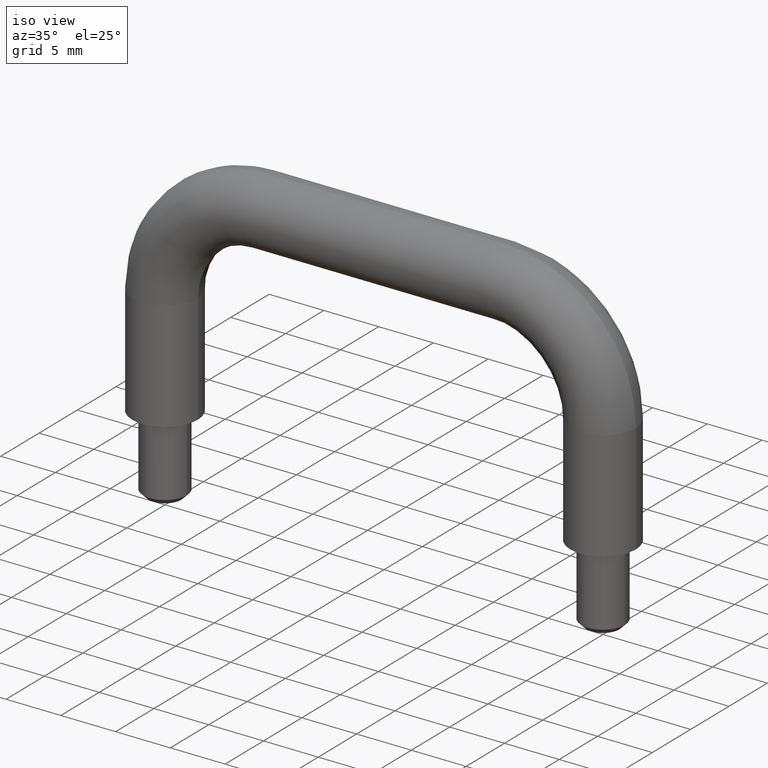
[diagram: clean part render]
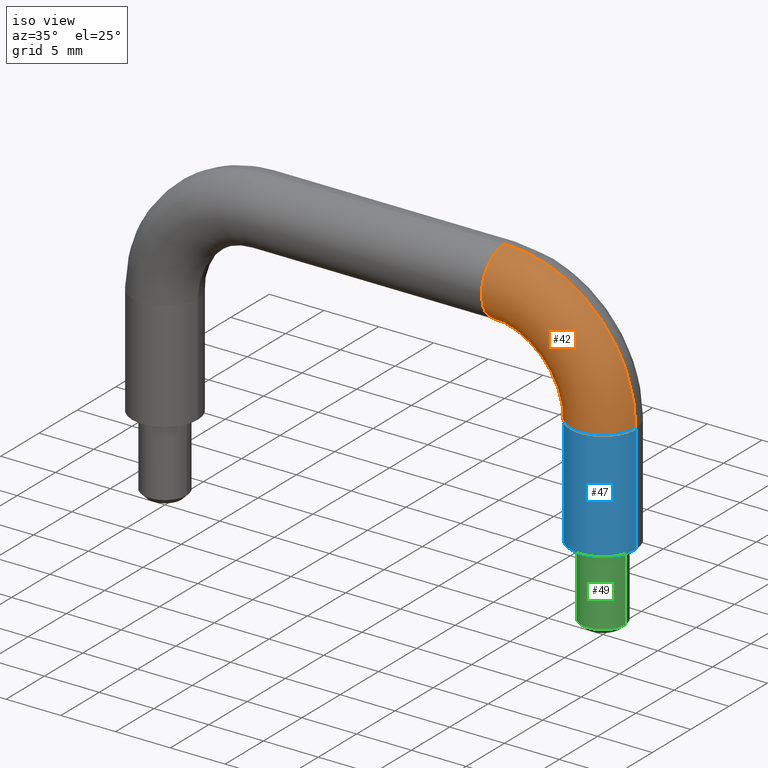
[diagram: same view with three faces highlighted in distinct colors, each labeled with its STEP entity id]
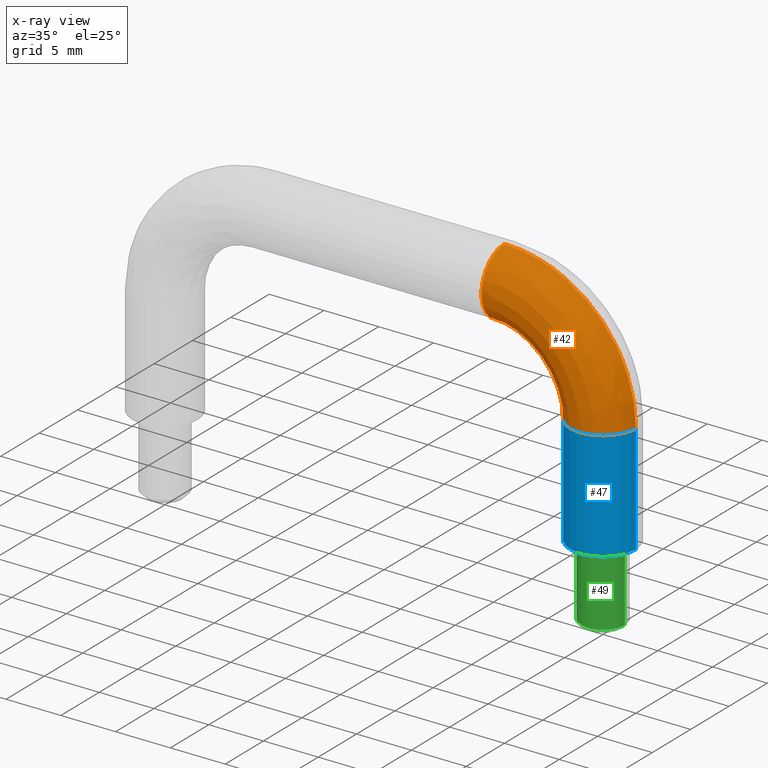
[diagram: x-ray of the same camera — body ghosted, the three highlighted faces saturated]
A machine part, iso view with three faces highlighted in distinct colors.
The next image is the same camera in x-ray (body ghosted, the three faces saturated) — at least one of them is partly hidden behind the body in this view.
Their STEP definitions:

[orange] entity #42 — the highlighted face is a freeform B-spline surface patch.
#42=ADVANCED_FACE('',(#84),#83,.T.);
#83=( BOUNDED_SURFACE() B_SPLINE_SURFACE( 3,3,((#295,#296,#297,#298,#299,#300,#301),(#302,#303,#304,#305,#306,#307,#308),(#309,#310,#311,#312,#313,#314,#315),(#316,#317,#318,#319,#320,#321,#322),(#323,#324,#325,#326,#327,#328,#329),(#330,#331,#332,#333,#334,#335,#336),(#337,#338,#339,#340,#341,#342,#343)), .UNSPECIFIED.,.F.,.F.,.F.) B_SPLINE_SURFACE_WITH_KNOTS((4,1,1,1,4),(4,1,1,1,4),(0.00000000000E+00,2.50000000000E-01,5.00000000000E-01,7.50000000000E-01,1.00000000000E+00),(0.00000000000E+00,2.49559115838E-01,5.00000000000E-01,7.50440884162E-01,1.00000000000E+00), .UNSPECIFIED. ) GEOMETRIC_REPRESENTATION_ITEM() RATIONAL_B_SPLINE_SURFACE(((1.00000000000E+00,1.00000000000E+00,1.00000000000E+00,1.00000000000E+00,1.00000000000E+00,1.00000000000E+00,1.00000000000E+00),(1.00000000000E+00,1.00000000000E+00,1.00000000000E+00,1.00000000000E+00,1.00000000000E+00,1.00000000000E+00,1.00000000000E+00),(1.00000000000E+00,1.00000000000E+00,1.00000000000E+00,1.00000000000E+00,1.00000000000E+00,1.00000000000E+00,1.00000000000E+00),(1.00000000000E+00,1.00000000000E+00,1.00000000000E+00,1.00000000000E+00,1.00000000000E+00,1.00000000000E+00,1.00000000000E+00),(1.00000000000E+00,1.00000000000E+00,1.00000000000E+00,1.00000000000E+00,1.00000000000E+00,1.00000000000E+00,1.00000000000E+00),(1.00000000000E+00,1.00000000000E+00,1.00000000000E+00,1.00000000000E+00,1.00000000000E+00,1.00000000000E+00,1.00000000000E+00),(1.00000000000E+00,1.00000000000E+00,1.00000000000E+00,1.00000000000E+00,1.00000000000E+00,1.00000000000E+00,1.00000000000E+00))) REPRESENTATION_ITEM('') SURFACE() );
#84=FACE_OUTER_BOUND('',#344,.T.);
#295=CARTESIAN_POINT('',(1.69999999999E+01,-3.67381906147E-16,-6.00000000000E+00));
#296=CARTESIAN_POINT('',(1.69999999999E+01,-3.67381906147E-16,-5.21598684610E+00));
#297=CARTESIAN_POINT('',(1.66881902111E+01,-3.67381906147E-16,-3.64564053599E+00));
#298=CARTESIAN_POINT('',(1.53535188052E+01,-3.67381906147E-16,-1.64648119474E+00));
#299=CARTESIAN_POINT('',(1.33543594639E+01,-3.67381906147E-16,-3.11809788756E-01));
#300=CARTESIAN_POINT('',(1.17840131538E+01,-3.67381906147E-16,3.78482820015E-15));
#301=CARTESIAN_POINT('',(1.09999999999E+01,-3.67381906147E-16,3.55271367880E-15));
#302=CARTESIAN_POINT('',(1.69960863756E+01,-7.84902571646E-01,-6.00000000000E+00));
#303=CARTESIAN_POINT('',(1.69960863756E+01,-7.84902571646E-01,-5.20327873106E+00));
#304=CARTESIAN_POINT('',(1.66840071326E+01,-7.84902571647E-01,-3.65333648329E+00));
#305=CARTESIAN_POINT('',(1.53523403333E+01,-7.84902571647E-01,-1.64765966658E+00));
#306=CARTESIAN_POINT('',(1.33466635166E+01,-7.84902571647E-01,-3.15992867272E-01));
#307=CARTESIAN_POINT('',(1.17967212688E+01,-7.84902571646E-01,-3.91362428601E-03));
#308=CARTESIAN_POINT('',(1.09999999999E+01,-7.84902571646E-01,-3.91362428601E-03));
#309=CARTESIAN_POINT('',(1.76486908706E+01,-2.35139231717E+00,-6.00000000000E+00));
#310=CARTESIAN_POINT('',(1.76486908706E+01,-2.35139231717E+00,-5.10117077798E+00));
#311=CARTESIAN_POINT('',(1.73020948003E+01,-2.35139231717E+00,-3.40510297808E+00));
#312=CARTESIAN_POINT('',(1.58279765903E+01,-2.35139231717E+00,-1.17202340958E+00));
#313=CARTESIAN_POINT('',(1.35948970218E+01,-2.35139231717E+00,3.02094800383E-01));
#314=CARTESIAN_POINT('',(1.18988292219E+01,-2.35139231717E+00,6.48690870700E-01));
#315=CARTESIAN_POINT('',(1.09999999999E+01,-2.35139231717E+00,6.48690870700E-01));
#316=CARTESIAN_POINT('',(1.99999999999E+01,-3.32731061924E+00,-6.00000000000E+00));
#317=CARTESIAN_POINT('',(1.99999999999E+01,-3.32731061924E+00,-4.82398026915E+00));
#318=CARTESIAN_POINT('',(1.95322853168E+01,-3.32731061924E+00,-2.46846080399E+00));
#319=CARTESIAN_POINT('',(1.75302782078E+01,-3.32731061924E+00,5.30278207890E-01));
#320=CARTESIAN_POINT('',(1.45315391959E+01,-3.32731061924E+00,2.53228531687E+00));
#321=CARTESIAN_POINT('',(1.21760197307E+01,-3.32731061924E+00,3.00000000000E+00));
#322=CARTESIAN_POINT('',(1.09999999999E+01,-3.32731061924E+00,3.00000000000E+00));
#323=CARTESIAN_POINT('',(2.23513091292E+01,-2.35139231717E+00,-6.00000000000E+00));
#324=CARTESIAN_POINT('',(2.23513091292E+01,-2.35139231717E+00,-4.54678976032E+00));
#325=CARTESIAN_POINT('',(2.17624758332E+01,-2.35139231717E+00,-1.53181862990E+00));
#326=CARTESIAN_POINT('',(1.92325798253E+01,-2.35139231717E+00,2.23257982536E+00));
#327=CARTESIAN_POINT('',(1.54681813700E+01,-2.35139231717E+00,4.76247583335E+00));
#328=CARTESIAN_POINT('',(1.24532102396E+01,-2.35139231717E+00,5.35130912930E+00));
#329=CARTESIAN_POINT('',(1.09999999999E+01,-2.35139231717E+00,5.35130912930E+00));
#330=CARTESIAN_POINT('',(2.30039136242E+01,-7.84902571646E-01,-6.00000000000E+00));
#331=CARTESIAN_POINT('',(2.30039136242E+01,-7.84902571646E-01,-4.44468180724E+00));
#332=CARTESIAN_POINT('',(2.23805635009E+01,-7.84902571646E-01,-1.28358512468E+00));
#333=CARTESIAN_POINT('',(1.97082160823E+01,-7.84902571646E-01,2.70821608236E+00));
#334=CARTESIAN_POINT('',(1.57164148752E+01,-7.84902571646E-01,5.38056350100E+00));
#335=CARTESIAN_POINT('',(1.25553181927E+01,-7.84902571646E-01,6.00391362429E+00));
#336=CARTESIAN_POINT('',(1.09999999999E+01,-7.84902571646E-01,6.00391362429E+00));
#337=CARTESIAN_POINT('',(2.29999999999E+01,0.00000000000E+00,-6.00000000000E+00));
#338=CARTESIAN_POINT('',(2.29999999999E+01,0.00000000000E+00,-4.43197369220E+00));
#339=CARTESIAN_POINT('',(2.23763804224E+01,0.00000000000E+00,-1.29128107198E+00));
#340=CARTESIAN_POINT('',(1.97070376104E+01,0.00000000000E+00,2.70703761052E+00));
#341=CARTESIAN_POINT('',(1.57087189279E+01,0.00000000000E+00,5.37638042249E+00));
#342=CARTESIAN_POINT('',(1.25680263077E+01,0.00000000000E+00,6.00000000000E+00));
#343=CARTESIAN_POINT('',(1.09999999999E+01,0.00000000000E+00,6.00000000000E+00));
#344=EDGE_LOOP('',(#558,#559,#560,#561));
#558=ORIENTED_EDGE('',*,*,#642,.T.);
#559=ORIENTED_EDGE('',*,*,#643,.F.);
#560=ORIENTED_EDGE('',*,*,#644,.T.);
#561=ORIENTED_EDGE('',*,*,#645,.T.);
#642=EDGE_CURVE('',#720,#721,#722,.T.);
#643=EDGE_CURVE('',#728,#721,#729,.T.);
#644=EDGE_CURVE('',#728,#735,#736,.T.);
#645=EDGE_CURVE('',#735,#720,#742,.T.);
#720=VERTEX_POINT('',#984);
#721=VERTEX_POINT('',#985);
#722=CIRCLE('',#989,3.00000000000E+00);
#728=VERTEX_POINT('',#990);
#729=CIRCLE('',#994,6.00000000000E+00);
#735=VERTEX_POINT('',#995);
#736=CIRCLE('',#999,3.00000000000E+00);
#742=(BOUNDED_CURVE() B_SPLINE_CURVE(3,(#1000,#1001,#1002,#1003,#1004),.UNSPECIFIED.,.F.,.F.) B_SPLINE_CURVE_WITH_KNOTS((4,1,4),(1.57079632679E+00,2.35619449020E+00,3.14159265360E+00),.UNSPECIFIED.) CURVE() GEOMETRIC_REPRESENTATION_ITEM() RATIONAL_B_SPLINE_CURVE((1.00000000000E+00,1.00000000000E+00,1.00000000000E+00,1.00000000000E+00,1.00000000000E+00)) REPRESENTATION_ITEM('') );
#984=CARTESIAN_POINT('',(1.09999999999E+01,-1.48029736617E-16,6.00000000000E+00));
#985=CARTESIAN_POINT('',(1.09999999999E+01,0.00000000000E+00,0.00000000000E+00));
#986=CARTESIAN_POINT('',(1.09999999999E+01,0.00000000000E+00,3.00000000000E+00));
#987=DIRECTION('',(1.00000000000E+00,0.00000000000E+00,0.00000000000E+00));
#988=DIRECTION('',(-0.00000000000E+00,4.93432455390E-17,-1.00000000000E+00));
#989=AXIS2_PLACEMENT_3D('',#986,#987,#988);
#990=CARTESIAN_POINT('',(1.69999999999E+01,-1.48029736617E-16,-6.00000000000E+00));
#991=CARTESIAN_POINT('',(1.09999999999E+01,-3.67381906147E-16,-6.00000000000E+00));
#992=DIRECTION('',(1.64346021921E-32,-1.00000000000E+00,-2.70217232571E-48));
#993=DIRECTION('',(-1.00000000000E+00,-1.64346021921E-32,2.64973228544E-13));
#994=AXIS2_PLACEMENT_3D('',#991,#992,#993);
#995=CARTESIAN_POINT('',(2.29999999999E+01,0.00000000000E+00,-6.00000000000E+00));
#996=CARTESIAN_POINT('',(1.99999999999E+01,0.00000000000E+00,-6.00000000000E+00));
#997=DIRECTION('',(0.00000000000E+00,0.00000000000E+00,1.00000000000E+00));
#998=DIRECTION('',(1.00000000000E+00,4.93432455390E-17,-0.00000000000E+00));
#999=AXIS2_PLACEMENT_3D('',#996,#997,#998);
#1000=CARTESIAN_POINT('',(2.29999999999E+01,0.00000000000E+00,-6.00000000003E+00));
#1001=CARTESIAN_POINT('',(2.30250591043E+01,0.00000000000E+00,-2.89325030285E+00));
#1002=CARTESIAN_POINT('',(2.04046583475E+01,0.00000000000E+00,3.40465834774E+00));
#1003=CARTESIAN_POINT('',(1.41067496969E+01,0.00000000000E+00,6.02505910444E+00));
#1004=CARTESIAN_POINT('',(1.09999999997E+01,0.00000000000E+00,6.00000000000E+00));

[blue] entity #47 — the highlighted cylindrical surface (partial cylindrical patch) has radius 3 mm, axis along (0, -0, 1).
#47=ADVANCED_FACE('',(#135),#134,.T.);
#134=CYLINDRICAL_SURFACE('',#414,3.00000000000E+00);
#135=FACE_OUTER_BOUND('',#415,.T.);
#411=CARTESIAN_POINT('',(1.99999999999E+01,0.00000000000E+00,-1.10000000000E+01));
#412=DIRECTION('',(0.00000000000E+00,-0.00000000000E+00,1.00000000000E+00));
#413=DIRECTION('',(1.00000000000E+00,-0.00000000000E+00,-0.00000000000E+00));
#414=AXIS2_PLACEMENT_3D('',#411,#412,#413);
#415=EDGE_LOOP('',(#576,#577,#578,#579));
#576=ORIENTED_EDGE('',*,*,#639,.F.);
#577=ORIENTED_EDGE('',*,*,#654,.T.);
#578=ORIENTED_EDGE('',*,*,#644,.F.);
#579=ORIENTED_EDGE('',*,*,#655,.F.);
#639=EDGE_CURVE('',#693,#692,#700,.T.);
#644=EDGE_CURVE('',#728,#735,#736,.T.);
#654=EDGE_CURVE('',#693,#735,#802,.T.);
#655=EDGE_CURVE('',#692,#728,#808,.T.);
#692=VERTEX_POINT('',#964);
#693=VERTEX_POINT('',#965);
#700=CIRCLE('',#973,3.00000000000E+00);
#728=VERTEX_POINT('',#990);
#735=VERTEX_POINT('',#995);
#736=CIRCLE('',#999,3.00000000000E+00);
#802=(BOUNDED_CURVE() B_SPLINE_CURVE(1,(#1043,#1044),.UNSPECIFIED.,.F.,.F.) B_SPLINE_CURVE_WITH_KNOTS((2,2),(8.33333343261E-02,9.16666667006E-01),.UNSPECIFIED.) CURVE() GEOMETRIC_REPRESENTATION_ITEM() RATIONAL_B_SPLINE_CURVE((1.00000000000E+00,1.00000000000E+00)) REPRESENTATION_ITEM('') );
#808=(BOUNDED_CURVE() B_SPLINE_CURVE(1,(#1045,#1046),.UNSPECIFIED.,.F.,.F.) B_SPLINE_CURVE_WITH_KNOTS((2,2),(8.33333333333E-02,9.16666666667E-01),.UNSPECIFIED.) CURVE() GEOMETRIC_REPRESENTATION_ITEM() RATIONAL_B_SPLINE_CURVE((7.50000000000E-01,7.50000000000E-01)) REPRESENTATION_ITEM('') );
#964=CARTESIAN_POINT('',(1.69999999999E+01,-3.67381906147E-16,-1.60000000000E+01));
#965=CARTESIAN_POINT('',(2.29999999999E+01,-2.96059473233E-16,-1.60000000000E+01));
#970=CARTESIAN_POINT('',(1.99999999999E+01,0.00000000000E+00,-1.60000000000E+01));
#971=DIRECTION('',(0.00000000000E+00,0.00000000000E+00,-1.00000000000E+00));
#972=DIRECTION('',(-1.00000000000E+00,-0.00000000000E+00,-0.00000000000E+00));
#973=AXIS2_PLACEMENT_3D('',#970,#971,#972);
#990=CARTESIAN_POINT('',(1.69999999999E+01,-1.48029736617E-16,-6.00000000000E+00));
#995=CARTESIAN_POINT('',(2.29999999999E+01,0.00000000000E+00,-6.00000000000E+00));
#996=CARTESIAN_POINT('',(1.99999999999E+01,0.00000000000E+00,-6.00000000000E+00));
#997=DIRECTION('',(0.00000000000E+00,0.00000000000E+00,1.00000000000E+00));
#998=DIRECTION('',(1.00000000000E+00,4.93432455390E-17,-0.00000000000E+00));
#999=AXIS2_PLACEMENT_3D('',#996,#997,#998);
#1043=CARTESIAN_POINT('',(2.29999999999E+01,0.00000000000E+00,-1.59999999881E+01));
#1044=CARTESIAN_POINT('',(2.29999999999E+01,0.00000000000E+00,-5.99999999593E+00));
#1045=CARTESIAN_POINT('',(1.69999999999E+01,-1.48029736617E-16,-1.60000000000E+01));
#1046=CARTESIAN_POINT('',(1.69999999999E+01,-1.48029736617E-16,-6.00000000000E+00));

[green] entity #49 — the highlighted cylindrical surface (edge-blend (fillet) strip) has radius 2 mm, axis along (-0, 0, -1).
#49=ADVANCED_FACE('',(#155),#154,.T.);
#154=CYLINDRICAL_SURFACE('',#424,2.00000000000E+00);
#155=FACE_OUTER_BOUND('',#425,.T.);
#421=CARTESIAN_POINT('',(1.99999999999E+01,0.00000000000E+00,-1.92500000000E+01));
#422=DIRECTION('',(-0.00000000000E+00,0.00000000000E+00,-1.00000000000E+00));
#423=DIRECTION('',(-1.00000000000E+00,-0.00000000000E+00,0.00000000000E+00));
#424=AXIS2_PLACEMENT_3D('',#421,#422,#423);
#425=EDGE_LOOP('',(#584,#585,#586,#587));
#584=ORIENTED_EDGE('',*,*,#640,.T.);
#585=ORIENTED_EDGE('',*,*,#657,.T.);
#586=ORIENTED_EDGE('',*,*,#659,.F.);
#587=ORIENTED_EDGE('',*,*,#658,.F.);
#640=EDGE_CURVE('',#706,#707,#708,.T.);
#657=EDGE_CURVE('',#707,#814,#822,.T.);
#658=EDGE_CURVE('',#706,#815,#828,.T.);
#659=EDGE_CURVE('',#815,#814,#834,.T.);
#706=VERTEX_POINT('',#974);
#707=VERTEX_POINT('',#975);
#708=CIRCLE('',#979,2.00000000000E+00);
#814=VERTEX_POINT('',#1047);
#815=VERTEX_POINT('',#1048);
#822=(BOUNDED_CURVE() B_SPLINE_CURVE(1,(#1053,#1054),.UNSPECIFIED.,.F.,.F.) B_SPLINE_CURVE_WITH_KNOTS((2,2),(8.33333347523E-02,9.16666664312E-01),.UNSPECIFIED.) CURVE() GEOMETRIC_REPRESENTATION_ITEM() RATIONAL_B_SPLINE_CURVE((1.00000000000E+00,1.00000000000E+00)) REPRESENTATION_ITEM('') );
#828=(BOUNDED_CURVE() B_SPLINE_CURVE(1,(#1055,#1056),.UNSPECIFIED.,.F.,.F.) B_SPLINE_CURVE_WITH_KNOTS((2,2),(8.33333333333E-02,9.16666666667E-01),.UNSPECIFIED.) CURVE() GEOMETRIC_REPRESENTATION_ITEM() RATIONAL_B_SPLINE_CURVE((7.50000000000E-01,7.50000000000E-01)) REPRESENTATION_ITEM('') );
#834=CIRCLE('',#1060,2.00000000000E+00);
#974=CARTESIAN_POINT('',(2.19999999999E+01,7.40148683083E-17,-1.60000000000E+01));
#975=CARTESIAN_POINT('',(1.79999999999E+01,-4.66965875689E-16,-1.60000000000E+01));
#976=CARTESIAN_POINT('',(1.99999999999E+01,0.00000000000E+00,-1.60000000000E+01));
#977=DIRECTION('',(0.00000000000E+00,0.00000000000E+00,-1.00000000000E+00));
#978=DIRECTION('',(-1.00000000000E+00,-1.11022302463E-16,-0.00000000000E+00));
#979=AXIS2_PLACEMENT_3D('',#976,#977,#978);
#1047=CARTESIAN_POINT('',(1.79999999999E+01,-4.66965875689E-16,-2.25000000000E+01));
#1048=CARTESIAN_POINT('',(2.19999999999E+01,9.62193288008E-16,-2.25000000000E+01));
#1053=CARTESIAN_POINT('',(1.79999999999E+01,0.00000000000E+00,-1.60000000111E+01));
#1054=CARTESIAN_POINT('',(1.79999999999E+01,0.00000000000E+00,-2.24999999816E+01));
#1055=CARTESIAN_POINT('',(2.19999999999E+01,-7.40148683083E-17,-1.60000000000E+01));
#1056=CARTESIAN_POINT('',(2.19999999999E+01,-7.40148683083E-17,-2.25000000000E+01));
#1057=CARTESIAN_POINT('',(1.99999999999E+01,0.00000000000E+00,-2.25000000000E+01));
#1058=DIRECTION('',(0.00000000000E+00,0.00000000000E+00,-1.00000000000E+00));
#1059=DIRECTION('',(-1.00000000000E+00,-1.11022302463E-16,-0.00000000000E+00));
#1060=AXIS2_PLACEMENT_3D('',#1057,#1058,#1059);